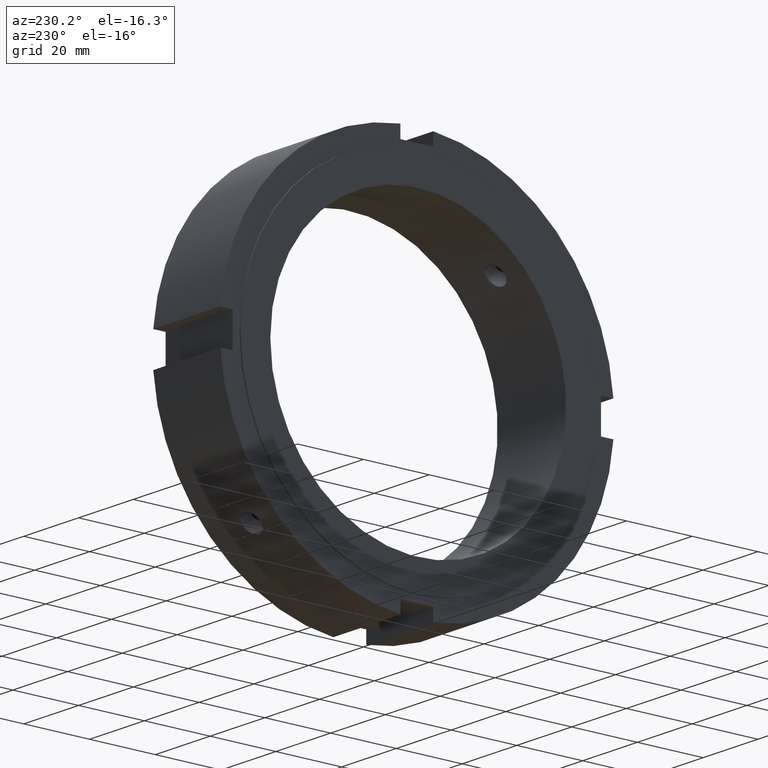
[diagram: clean part render]
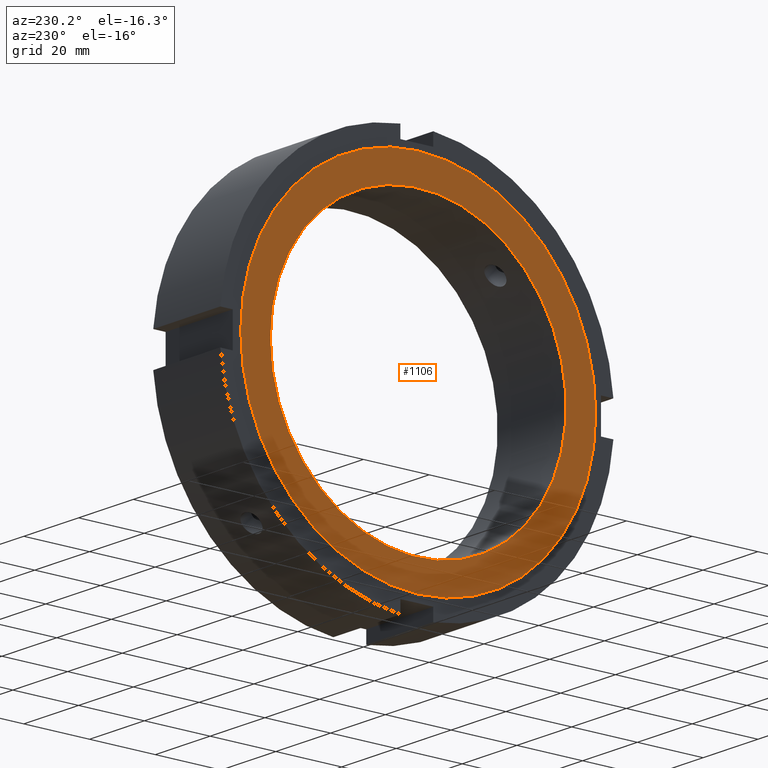
[diagram: same view with one face highlighted and labeled with its STEP entity id]
A machine part, auxiliary view. The second image highlights one B-rep face of the part: STEP entity #1106.
In plain terms, the highlighted planar face has unit normal (-1, 0, 0).
Its self-contained STEP definition (entity closure, byte-faithful):
#1079=CARTESIAN_POINT('',(-1.532360E-014,49.5,0.0));
#1080=DIRECTION('',(-1.0,0.0,0.0));
#1081=DIRECTION('',(0.0,0.0,1.0));
#1082=AXIS2_PLACEMENT_3D('',#1079,#1080,#1081);
#1083=PLANE('',#1082);
#1084=CARTESIAN_POINT('',(-1.776357E-014,54.0,0.0));
#1085=VERTEX_POINT('',#1084);
#1086=CARTESIAN_POINT('',(-1.776357E-014,0.0,0.0));
#1087=DIRECTION('',(1.0,0.0,0.0));
#1088=DIRECTION('',(0.0,1.0,0.0));
#1089=AXIS2_PLACEMENT_3D('',#1086,#1087,#1088);
#1090=CIRCLE('',#1089,54.0);
#1091=EDGE_CURVE('',#1085,#1085,#1090,.T.);
#1092=ORIENTED_EDGE('',*,*,#1091,.F.);
#1093=EDGE_LOOP('',(#1092));
#1094=FACE_OUTER_BOUND('',#1093,.T.);
#1095=CARTESIAN_POINT('',(-1.288362E-014,45.0,0.0));
#1096=VERTEX_POINT('',#1095);
#1097=CARTESIAN_POINT('',(-1.288466E-014,0.0,0.0));
#1098=DIRECTION('',(1.0,0.0,0.0));
#1099=DIRECTION('',(0.0,1.0,0.0));
#1100=AXIS2_PLACEMENT_3D('',#1097,#1098,#1099);
#1101=CIRCLE('',#1100,45.0);
#1102=EDGE_CURVE('',#1096,#1096,#1101,.T.);
#1103=ORIENTED_EDGE('',*,*,#1102,.T.);
#1104=EDGE_LOOP('',(#1103));
#1105=FACE_BOUND('',#1104,.T.);
#1106=ADVANCED_FACE('',(#1094,#1105),#1083,.T.);